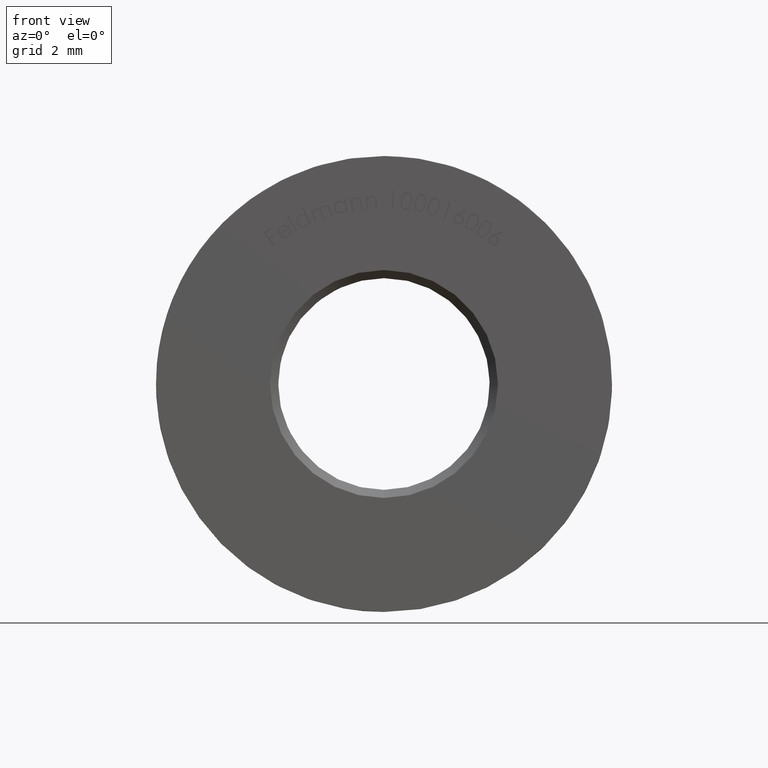
[diagram: clean part render]
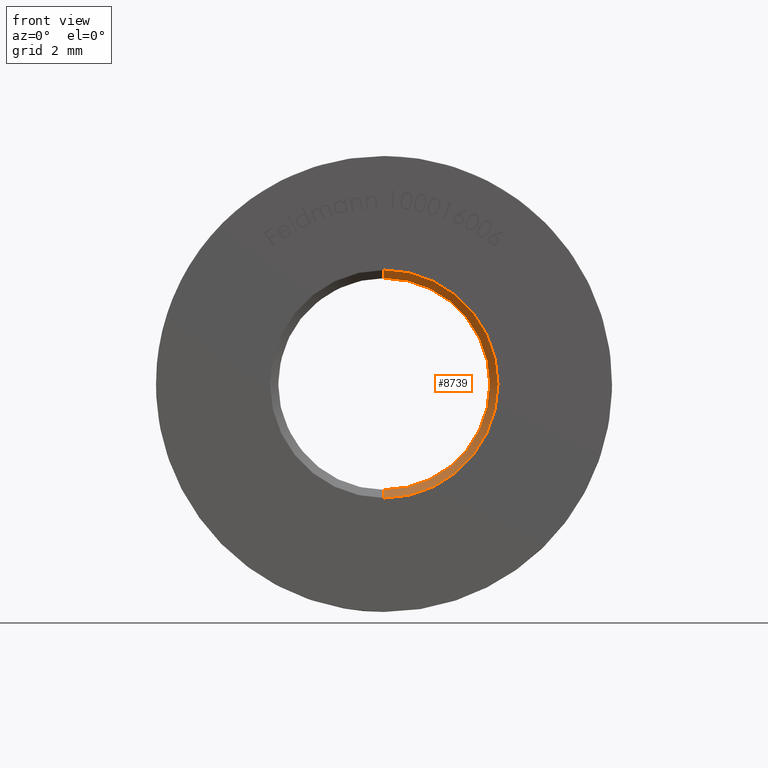
[diagram: same view with one face highlighted and labeled with its STEP entity id]
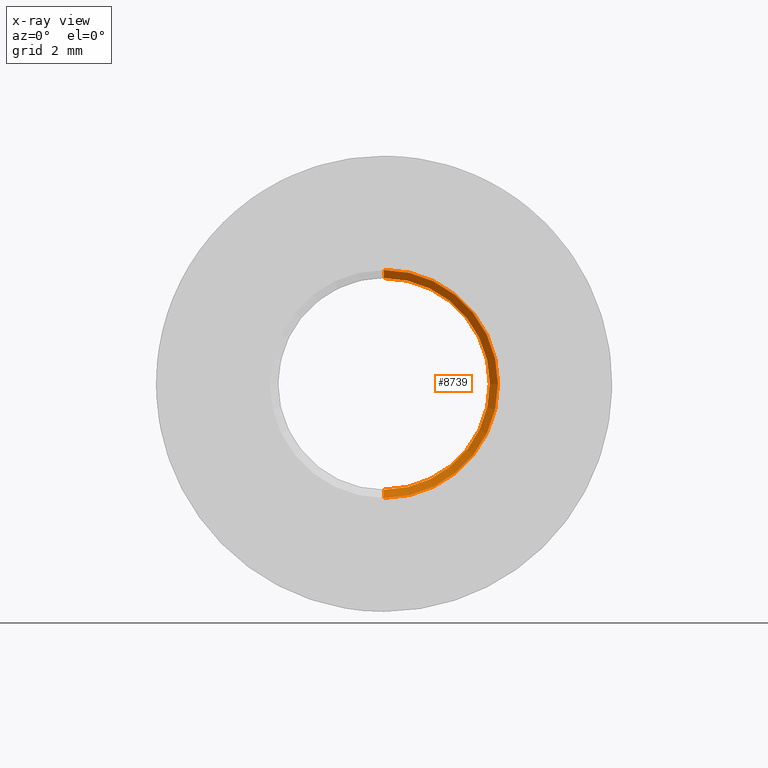
[diagram: x-ray of the same camera — body ghosted, the highlighted face saturated]
A machine part, front view. The second image highlights one B-rep face of the part: STEP entity #8739.
The next image is the same camera in x-ray: the body ghosted, the highlighted face saturated — about 0% of this face is hidden behind the body in this view.
In plain terms, the highlighted conical surface has half-angle 45 deg.
Its self-contained STEP definition (entity closure, byte-faithful):
#12 = VECTOR ( 'NONE', #5268, 1000.000000000000000 ) ;
#461 = FACE_OUTER_BOUND ( 'NONE', #11846, .T. ) ;
#486 = VERTEX_POINT ( 'NONE', #12079 ) ;
#613 = CONICAL_SURFACE ( 'NONE', #6893, 3.250000000000000400, 0.7853981633974466100 ) ;
#888 = ORIENTED_EDGE ( 'NONE', *, *, #3737, .T. ) ;
#926 = DIRECTION ( 'NONE',  ( 0.0000000000000000000, -1.000000000000000000, 0.0000000000000000000 ) ) ;
#1970 = CARTESIAN_POINT ( 'NONE',  ( 3.980102097228898200E-016, 0.2500000000000002200, 3.250000000000000400 ) ) ;
#2063 = CIRCLE ( 'NONE', #11795, 3.250000000000000400 ) ;
#2661 = CARTESIAN_POINT ( 'NONE',  ( 0.0000000000000000000, 0.2500000000000002200, 0.0000000000000000000 ) ) ;
#3643 = VERTEX_POINT ( 'NONE', #9558 ) ;
#3651 = DIRECTION ( 'NONE',  ( 0.0000000000000000000, -1.000000000000000000, 0.0000000000000000000 ) ) ;
#3737 = EDGE_CURVE ( 'NONE', #486, #13269, #10724, .T. ) ;
#4006 = EDGE_CURVE ( 'NONE', #3643, #8377, #7230, .T. ) ;
#4941 = DIRECTION ( 'NONE',  ( 0.0000000000000000000, 0.0000000000000000000, 1.000000000000000000 ) ) ;
#5268 = DIRECTION ( 'NONE',  ( 8.659560562354919300E-017, -0.7071067811865487900, 0.7071067811865463500 ) ) ;
#5507 = CIRCLE ( 'NONE', #11528, 3.499999999999999600 ) ;
#5512 = CARTESIAN_POINT ( 'NONE',  ( 0.0000000000000000000, 0.0000000000000000000, -3.499999999999999600 ) ) ;
#5806 = CARTESIAN_POINT ( 'NONE',  ( 4.286263797015736100E-016, 0.0000000000000000000, 3.499999999999999600 ) ) ;
#6293 = DIRECTION ( 'NONE',  ( 0.0000000000000000000, 0.0000000000000000000, -1.000000000000000000 ) ) ;
#6580 = CARTESIAN_POINT ( 'NONE',  ( 0.0000000000000000000, 0.2500000000000002200, -3.250000000000000400 ) ) ;
#6893 = AXIS2_PLACEMENT_3D ( 'NONE', #2661, #926, #6293 ) ;
#7230 = LINE ( 'NONE', #1970, #12 ) ;
#7698 = ORIENTED_EDGE ( 'NONE', *, *, #10651, .F. ) ;
#8094 = CARTESIAN_POINT ( 'NONE',  ( 0.0000000000000000000, 0.0000000000000000000, 0.0000000000000000000 ) ) ;
#8377 = VERTEX_POINT ( 'NONE', #5806 ) ;
#8587 = VECTOR ( 'NONE', #9705, 1000.000000000000000 ) ;
#8739 = ADVANCED_FACE ( 'NONE', ( #461 ), #613, .F. ) ;
#9289 = ORIENTED_EDGE ( 'NONE', *, *, #9589, .F. ) ;
#9558 = CARTESIAN_POINT ( 'NONE',  ( 3.980102097228898200E-016, 0.2500000000000002200, 3.250000000000000400 ) ) ;
#9589 = EDGE_CURVE ( 'NONE', #486, #3643, #2063, .T. ) ;
#9705 = DIRECTION ( 'NONE',  ( 0.0000000000000000000, -0.7071067811865487900, -0.7071067811865463500 ) ) ;
#9964 = DIRECTION ( 'NONE',  ( 0.0000000000000000000, 0.0000000000000000000, 1.000000000000000000 ) ) ;
#10651 = EDGE_CURVE ( 'NONE', #8377, #13269, #5507, .T. ) ;
#10724 = LINE ( 'NONE', #6580, #8587 ) ;
#10883 = ORIENTED_EDGE ( 'NONE', *, *, #4006, .F. ) ;
#11528 = AXIS2_PLACEMENT_3D ( 'NONE', #8094, #12447, #4941 ) ;
#11795 = AXIS2_PLACEMENT_3D ( 'NONE', #13106, #3651, #9964 ) ;
#11846 = EDGE_LOOP ( 'NONE', ( #10883, #9289, #888, #7698 ) ) ;
#12079 = CARTESIAN_POINT ( 'NONE',  ( 0.0000000000000000000, 0.2500000000000002200, -3.250000000000000400 ) ) ;
#12447 = DIRECTION ( 'NONE',  ( 0.0000000000000000000, 1.000000000000000000, 0.0000000000000000000 ) ) ;
#13106 = CARTESIAN_POINT ( 'NONE',  ( 0.0000000000000000000, 0.2500000000000002200, 0.0000000000000000000 ) ) ;
#13269 = VERTEX_POINT ( 'NONE', #5512 ) ;